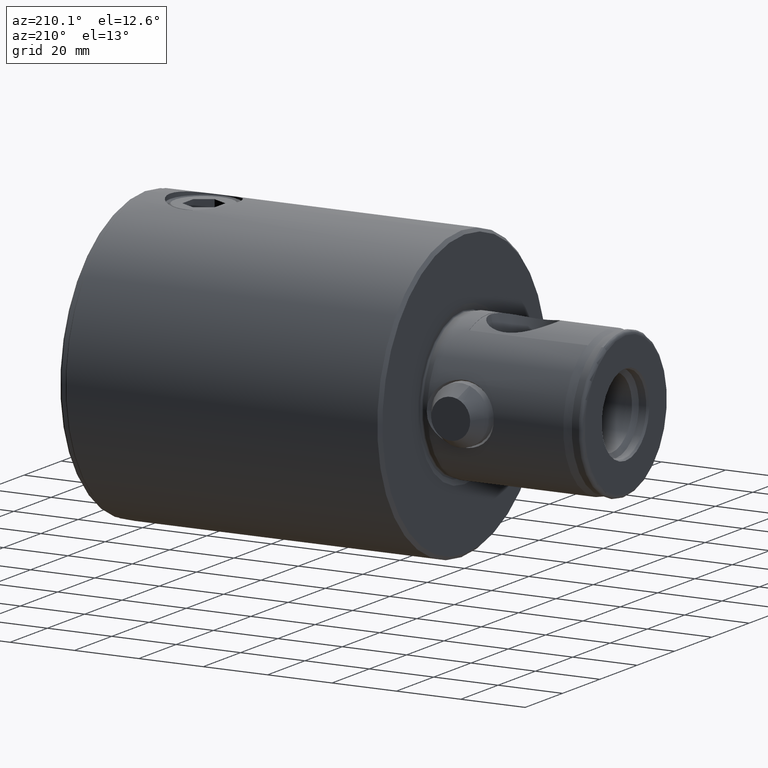
[diagram: clean part render]
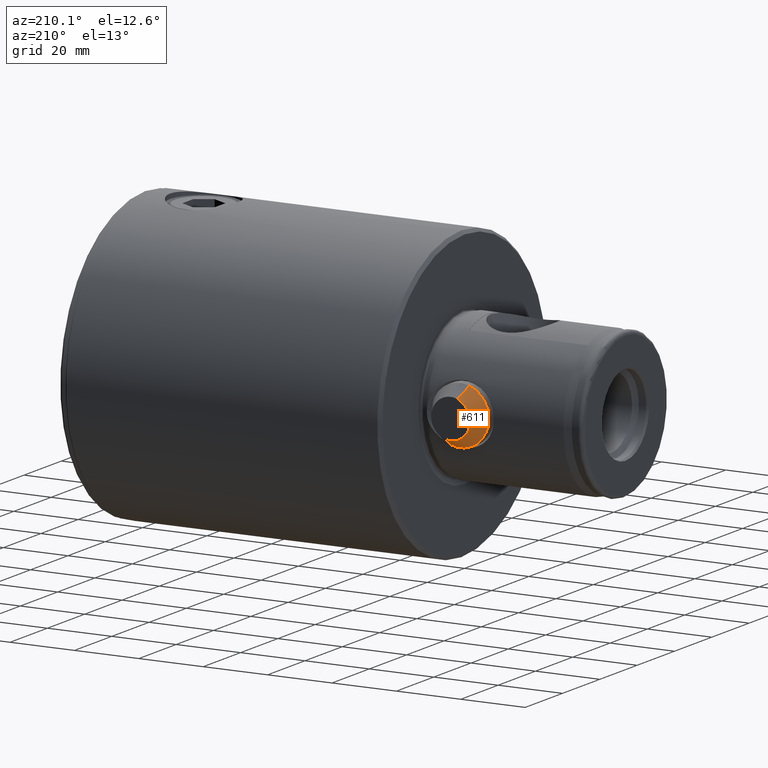
[diagram: same view with one face highlighted and labeled with its STEP entity id]
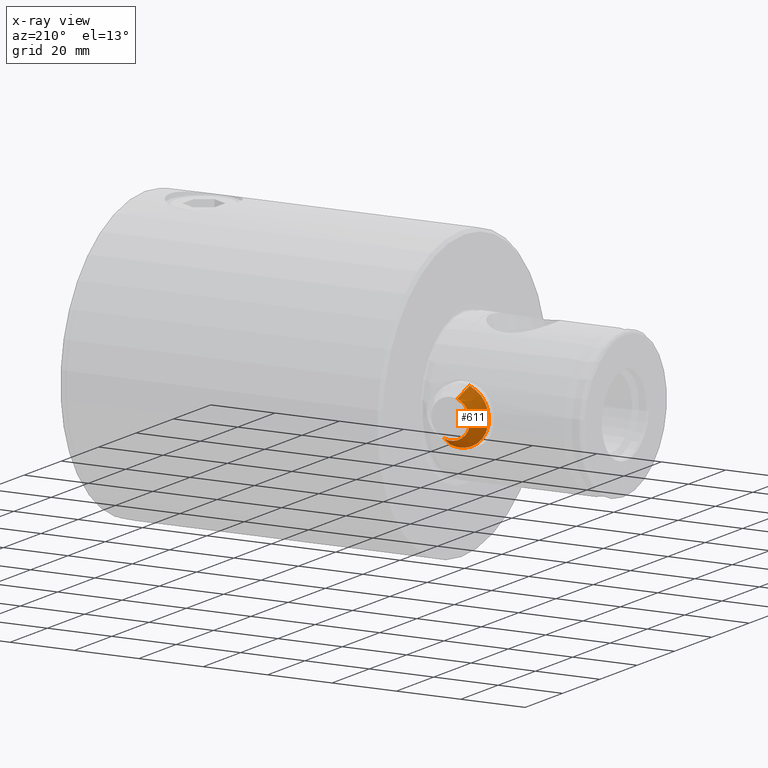
[diagram: x-ray of the same camera — body ghosted, the highlighted face saturated]
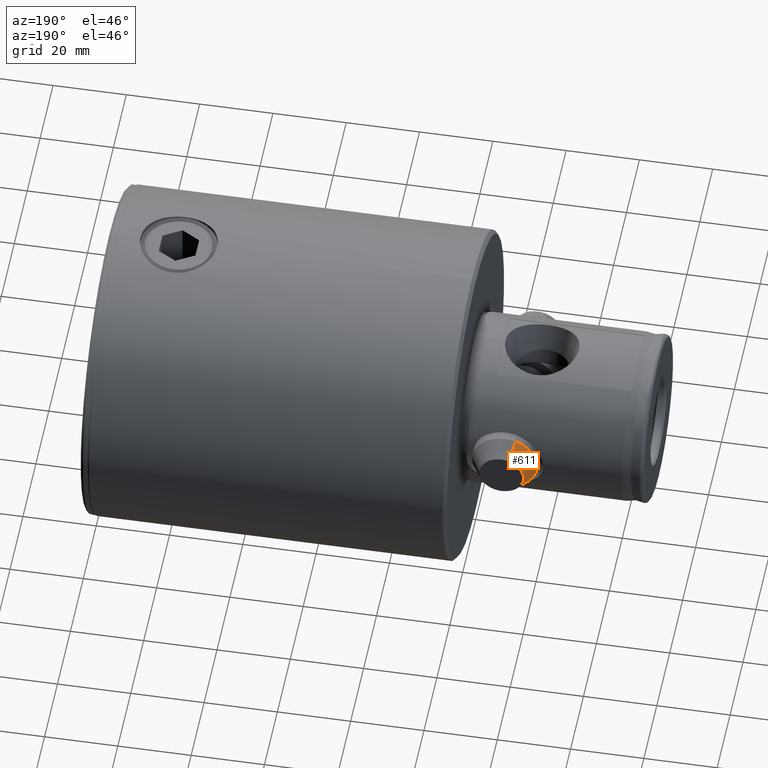
[diagram: same view with one face highlighted and labeled with its STEP entity id]
A machine part, auxiliary view. The second image highlights one B-rep face of the part: STEP entity #611.
The next image is the same camera in x-ray: the body ghosted, the highlighted face saturated — about 0% of this face is hidden behind the body in this view.
A second angle (auxiliary view) of the same face is appended — the face is thin or edge-on in the first view.
In plain terms, the highlighted conical surface has half-angle 30 deg.
Its self-contained STEP definition (entity closure, byte-faithful):
#14 = CONICAL_SURFACE ( 'NONE', #160, 6.063248654051866600, 0.5235987755982961500 ) ;
#17 = EDGE_CURVE ( 'NONE', #3866, #3903, #4517, .T. ) ;
#66 = DIRECTION ( 'NONE',  ( -1.000000000000000000, 0.0000000000000000000, 0.0000000000000000000 ) ) ;
#160 = AXIS2_PLACEMENT_3D ( 'NONE', #1003, #4933, #627 ) ;
#327 = CARTESIAN_POINT ( 'NONE',  ( 56.20000000000000300, 0.0000000000000000000, 6.063248654051866600 ) ) ;
#611 = ADVANCED_FACE ( 'NONE', ( #1507 ), #14, .T. ) ;
#627 = DIRECTION ( 'NONE',  ( 0.0000000000000000000, 0.0000000000000000000, 1.000000000000000000 ) ) ;
#710 = CARTESIAN_POINT ( 'NONE',  ( 56.20000000000000300, 9.192963454493963400E-016, -6.063248654051866600 ) ) ;
#1003 = CARTESIAN_POINT ( 'NONE',  ( 56.20000000000000300, 0.0000000000000000000, 0.0000000000000000000 ) ) ;
#1150 = AXIS2_PLACEMENT_3D ( 'NONE', #2888, #4464, #3301 ) ;
#1203 = CARTESIAN_POINT ( 'NONE',  ( 51.19999999999996000, 0.0000000000000000000, 0.0000000000000000000 ) ) ;
#1240 = DIRECTION ( 'NONE',  ( 0.0000000000000000000, 0.0000000000000000000, -1.000000000000000000 ) ) ;
#1291 = VECTOR ( 'NONE', #4257, 1000.000000000000000 ) ;
#1475 = CIRCLE ( 'NONE', #3297, 8.949999999999999300 ) ;
#1507 = FACE_OUTER_BOUND ( 'NONE', #2070, .T. ) ;
#1569 = DIRECTION ( 'NONE',  ( -0.8660254037844400400, 0.0000000000000000000, 0.4999999999999976100 ) ) ;
#1968 = CARTESIAN_POINT ( 'NONE',  ( 51.19999999999996000, 1.096058885236881000E-015, -8.949999999999999300 ) ) ;
#2070 = EDGE_LOOP ( 'NONE', ( #4922, #2567, #3045, #3422 ) ) ;
#2163 = VECTOR ( 'NONE', #1569, 1000.000000000000000 ) ;
#2347 = CARTESIAN_POINT ( 'NONE',  ( 56.20000000000000300, 0.0000000000000000000, 6.063248654051866600 ) ) ;
#2468 = EDGE_CURVE ( 'NONE', #3903, #3046, #4181, .T. ) ;
#2567 = ORIENTED_EDGE ( 'NONE', *, *, #3820, .T. ) ;
#2888 = CARTESIAN_POINT ( 'NONE',  ( 56.20000000000000300, 0.0000000000000000000, 0.0000000000000000000 ) ) ;
#3045 = ORIENTED_EDGE ( 'NONE', *, *, #3946, .F. ) ;
#3046 = VERTEX_POINT ( 'NONE', #3681 ) ;
#3297 = AXIS2_PLACEMENT_3D ( 'NONE', #1203, #66, #1240 ) ;
#3301 = DIRECTION ( 'NONE',  ( 0.0000000000000000000, 0.0000000000000000000, -1.000000000000000000 ) ) ;
#3422 = ORIENTED_EDGE ( 'NONE', *, *, #2468, .F. ) ;
#3681 = CARTESIAN_POINT ( 'NONE',  ( 51.19999999999996000, 0.0000000000000000000, 8.949999999999999300 ) ) ;
#3820 = EDGE_CURVE ( 'NONE', #3866, #5020, #4227, .T. ) ;
#3866 = VERTEX_POINT ( 'NONE', #710 ) ;
#3903 = VERTEX_POINT ( 'NONE', #2347 ) ;
#3946 = EDGE_CURVE ( 'NONE', #3046, #5020, #1475, .T. ) ;
#4181 = LINE ( 'NONE', #327, #2163 ) ;
#4227 = LINE ( 'NONE', #4678, #1291 ) ;
#4257 = DIRECTION ( 'NONE',  ( -0.8660254037844400400, 6.123233995736736500E-017, -0.4999999999999976100 ) ) ;
#4464 = DIRECTION ( 'NONE',  ( 1.000000000000000000, 0.0000000000000000000, 0.0000000000000000000 ) ) ;
#4517 = CIRCLE ( 'NONE', #1150, 6.063248654051866600 ) ;
#4678 = CARTESIAN_POINT ( 'NONE',  ( 56.20000000000000300, 7.425338056619116500E-016, -6.063248654051866600 ) ) ;
#4922 = ORIENTED_EDGE ( 'NONE', *, *, #17, .F. ) ;
#4933 = DIRECTION ( 'NONE',  ( -1.000000000000000000, 0.0000000000000000000, 0.0000000000000000000 ) ) ;
#5020 = VERTEX_POINT ( 'NONE', #1968 ) ;